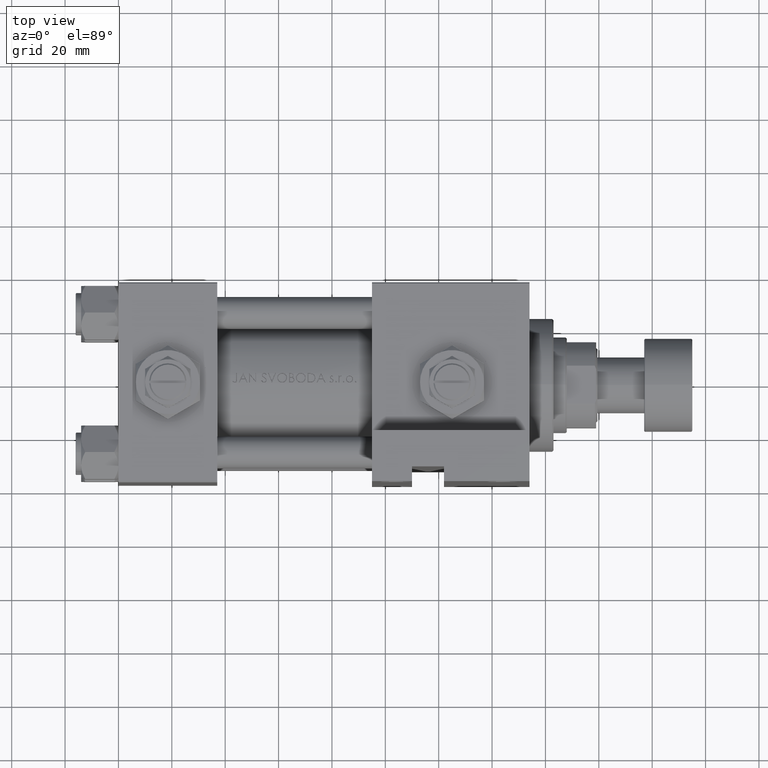
[diagram: clean part render]
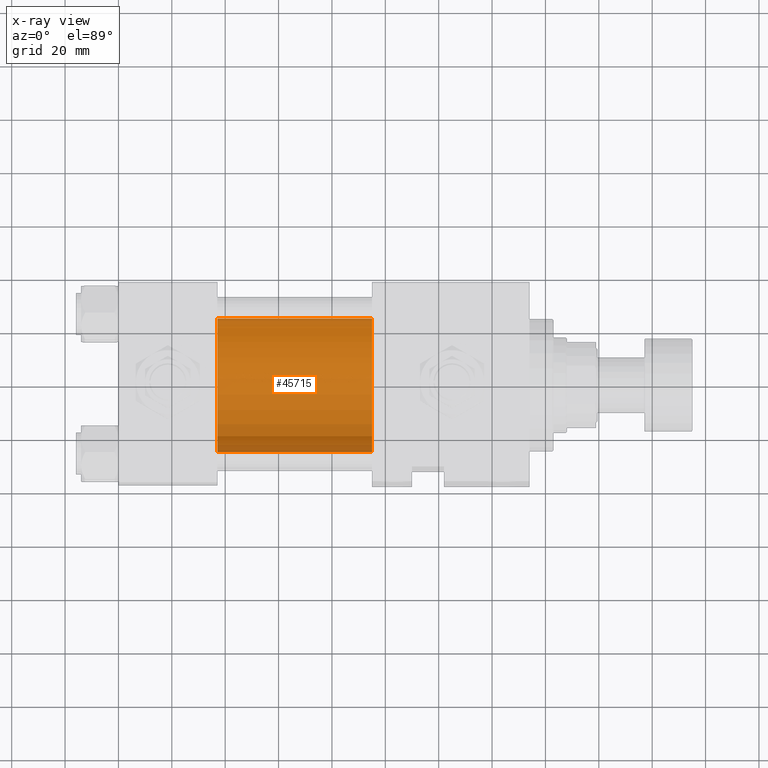
[diagram: x-ray — body ghosted, one internal face saturated and labeled with its STEP entity id]
A machine part, top view, then the same camera in x-ray: the body is ghosted and one INTERNAL B-rep face — a face not visible from any outside direction — is saturated and labeled: STEP entity #45715.
In plain terms, the highlighted cylindrical surface (partial cylindrical patch) has radius 25 mm, axis along (-1, -0, 0).
Its self-contained STEP definition (entity closure, byte-faithful):
#978 = ORIENTED_EDGE ( 'NONE', *, *, #45479, .T. ) ;
#3101 = AXIS2_PLACEMENT_3D ( 'NONE', #6944, #30508, #45962 ) ;
#3785 = EDGE_LOOP ( 'NONE', ( #39751, #978, #49153, #35890 ) ) ;
#3958 = VERTEX_POINT ( 'NONE', #41785 ) ;
#4154 = DIRECTION ( 'NONE',  ( 0.000000000000000000, 0.000000000000000000, -1.000000000000000000 ) ) ;
#4403 = CARTESIAN_POINT ( 'NONE',  ( 95.00000000000000000, 6.123233995736772199E-17, -0.5000000000000004441 ) ) ;
#6944 = CARTESIAN_POINT ( 'NONE',  ( 37.00000000000000000, 6.123233995736772199E-17, -0.5000000000000004441 ) ) ;
#7166 = DIRECTION ( 'NONE',  ( -1.000000000000000000, -0.000000000000000000, -0.000000000000000000 ) ) ;
#8363 = CARTESIAN_POINT ( 'NONE',  ( 37.00000000000000000, 3.122849337825749828E-15, -25.50000000000000355 ) ) ;
#10295 = VERTEX_POINT ( 'NONE', #23384 ) ;
#10965 = FACE_OUTER_BOUND ( 'NONE', #3785, .T. ) ;
#15206 = CARTESIAN_POINT ( 'NONE',  ( 95.00000000000000000, 6.123233995736772199E-17, 24.50000000000000000 ) ) ;
#15601 = VECTOR ( 'NONE', #42607, 1000.000000000000000 ) ;
#16840 = CIRCLE ( 'NONE', #3101, 25.00000000000000000 ) ;
#20013 = CARTESIAN_POINT ( 'NONE',  ( 95.00000000000000000, 3.122849337825749828E-15, -25.50000000000000355 ) ) ;
#22141 = EDGE_CURVE ( 'NONE', #10295, #3958, #22577, .T. ) ;
#22577 = LINE ( 'NONE', #15206, #15601 ) ;
#22606 = DIRECTION ( 'NONE',  ( 0.000000000000000000, 0.000000000000000000, 1.000000000000000000 ) ) ;
#23384 = CARTESIAN_POINT ( 'NONE',  ( 95.00000000000000000, 6.123233995736772199E-17, 24.50000000000000000 ) ) ;
#24414 = CARTESIAN_POINT ( 'NONE',  ( 95.00000000000000000, 3.122849337825749828E-15, -25.50000000000000355 ) ) ;
#26422 = CYLINDRICAL_SURFACE ( 'NONE', #45629, 25.00000000000000000 ) ;
#28663 = AXIS2_PLACEMENT_3D ( 'NONE', #4403, #47000, #4154 ) ;
#30257 = CIRCLE ( 'NONE', #28663, 25.00000000000000000 ) ;
#30508 = DIRECTION ( 'NONE',  ( 1.000000000000000000, 0.000000000000000000, 0.000000000000000000 ) ) ;
#31682 = DIRECTION ( 'NONE',  ( -1.000000000000000000, -0.000000000000000000, -0.000000000000000000 ) ) ;
#32054 = VERTEX_POINT ( 'NONE', #24414 ) ;
#32735 = VECTOR ( 'NONE', #31682, 1000.000000000000000 ) ;
#35743 = LINE ( 'NONE', #20013, #32735 ) ;
#35890 = ORIENTED_EDGE ( 'NONE', *, *, #39190, .F. ) ;
#39190 = EDGE_CURVE ( 'NONE', #41394, #3958, #16840, .T. ) ;
#39751 = ORIENTED_EDGE ( 'NONE', *, *, #46975, .F. ) ;
#41394 = VERTEX_POINT ( 'NONE', #8363 ) ;
#41785 = CARTESIAN_POINT ( 'NONE',  ( 37.00000000000000000, 6.123233995736772199E-17, 24.50000000000000000 ) ) ;
#41893 = CARTESIAN_POINT ( 'NONE',  ( 95.00000000000000000, 6.123233995736772199E-17, -0.5000000000000004441 ) ) ;
#42607 = DIRECTION ( 'NONE',  ( -1.000000000000000000, -0.000000000000000000, -0.000000000000000000 ) ) ;
#45479 = EDGE_CURVE ( 'NONE', #32054, #10295, #30257, .T. ) ;
#45629 = AXIS2_PLACEMENT_3D ( 'NONE', #41893, #7166, #22606 ) ;
#45715 = ADVANCED_FACE ( 'NONE', ( #10965 ), #26422, .F. ) ;
#45962 = DIRECTION ( 'NONE',  ( 0.000000000000000000, 0.000000000000000000, -1.000000000000000000 ) ) ;
#46975 = EDGE_CURVE ( 'NONE', #32054, #41394, #35743, .T. ) ;
#47000 = DIRECTION ( 'NONE',  ( 1.000000000000000000, 0.000000000000000000, 0.000000000000000000 ) ) ;
#49153 = ORIENTED_EDGE ( 'NONE', *, *, #22141, .T. ) ;